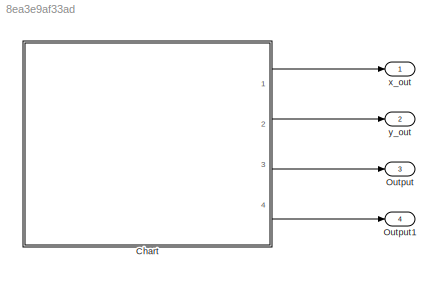
MODEL slx_8ea3e9af33ad
KIND model
CONFIG AbsTol = auto
CONFIG EnableMultiTasking = off
CONFIG FixedStep = timeStepMax
CONFIG MaxStep = timeStepMax
CONFIG MinStep = auto
CONFIG RelTol = 1e-3
CONFIG SampleTimeConstraint = Unconstrained
CONFIG SolverName = FixedStepAuto
CONFIG StartTime = 0.0
CONFIG StopTime = timeFinal
WORKSPACE source: mxarray member
WORKSPACE x0 = 5
WORKSPACE y0 = 5
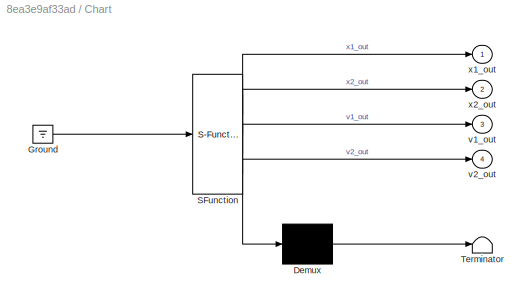
BLOCK [SubSystem] Chart
  ErrorFcn = Stateflow.Translate.translate
  PermitHierarchicalResolution = ExplicitOnly
  Ports = [0, 4]
  RequestExecContextInheritance = off
  SFBlockType = Chart
  TreatAsAtomicUnit = on
BLOCK [Demux] Chart/ Demux 
  Outputs = 1
  Ports = [1, 1]
BLOCK [Ground] Chart/ Ground 
BLOCK [S-Function] Chart/ SFunction 
  EnableBusSupport = on
  FunctionName = sf_sfun
  Parameters = a0,a1,b0,b1
  PortCounts = [1 5]
  Ports = [1, 5]
  SFcnIsStateOwnerBlock = off
  SFunctionDeploymentMode = off
  Tag = Stateflow S-Function 3
BLOCK [Terminator] Chart/ Terminator 
BLOCK [Outport] Chart/v1_out
  Port = 3
BLOCK [Outport] Chart/v2_out
  Port = 4
BLOCK [Outport] Chart/x1_out
BLOCK [Outport] Chart/x2_out
  Port = 2
BLOCK [Outport] Output
  Port = 3
  SignalName = v1Out
BLOCK [Outport] Output1
  Port = 4
  SignalName = v2Out
BLOCK [Outport] x_out
  SignalName = x1Out
BLOCK [Outport] y_out
  Port = 2
  SignalName = x2Out
LINE Chart:1 -> x_out:1
LINE Chart:2 -> y_out:1
LINE Chart:3 -> Output:1
LINE Chart:4 -> Output1:1
CHART Chart states=9 transitions=30
  STATE_LABEL 'loc9\ndu:  % derivatives\n  x1_dot = 1.0 * v1;\n  x2_dot = 1.0 * v2;\n  v1_dot = -1.2 * v1 + 0.1 * v2 + 0.1;\n  v2_dot = 0.1 * v1 - 1.2 * v2 - 1.2;\nexit:\n      x1_out=x1;\n      x2_out=x2;\n      v1_out=v1;\n      v2_out=v2;'
  STATE_LABEL 'loc7\ndu:\n    x1_dot = 0;\n    x2_dot = 0;\n    v1_dot = 0;\n    v2_dot = 0;\nexit:\n      x1_out=x1;\n      x2_out=x2;\n      v1_out=v1;\n      v2_out=v2;'
  STATE_LABEL 'loc8\ndu:  % derivatives\n  x1_dot = 1.0 * v1;\n  x2_dot = 1.0 * v2;\n  v1_dot = -1.2 * v1 + 0.1 * v2 + 1.2;\n  v2_dot = 0.1 * v1 - 1.2 * v2 - 0.1;\nexit:\n      x1_out=x1;\n      x2_out=x2;\n      v1_out=v1;\n      v2_out=v2;'
  STATE_LABEL 'loc4\ndu:  % derivatives\n  x1_dot = 1.0 * v1;\n  x2_dot = 1.0 * v2;\n  v1_dot = -1.2 * v1 + 0.1 * v2 + 1.2;\n  v2_dot = 0.1 * v1 - 1.2 * v2 - 0.1;\nexit:\n      x1_out=x1;\n      x2_out=x2;\n      v1_out=v1;\n      v2_out=v2;'
  STATE_LABEL 'loc5\ndu:  % derivatives\n  x1_dot = 1.0 * v1;\n  x2_dot = 1.0 * v2;\n  v1_dot = -1.2 * v1 + 0.1 * v2 + 1.2;\n  v2_dot = 0.1 * v1 - 1.2 * v2 - 0.1;\nexit:\n      x1_out=x1;\n      x2_out=x2;\n      v1_out=v1;\n      v2_out=v2;'
  STATE_LABEL 'loc6\ndu:  % derivatives\n  x1_dot = 1.0 * v1;\n  x2_dot = 1.0 * v2;\n  v1_dot = -1.2 * v1 + 0.1 * v2 + 0.1;\n  v2_dot = 0.1 * v1 - 1.2 * v2 - 1.2;\nexit:\n      x1_out=x1;\n      x2_out=x2;\n      v1_out=v1;\n      v2_out=v2;'
  STATE_LABEL 'loc3\ndu:\n  x1_dot = 0;\n  x2_dot = 0;\n  v1_dot = 0;\n  v2_dot = 0;\nexit:\n      x1_out=x1;\n      x2_out=x2;\n      v1_out=v1;\n      v2_out=v2;'
  STATE_LABEL 'loc1\ndu:  % derivatives\n  x1_dot = 1.0 * v1;\n  x2_dot = 1.0 * v2;\n  v1_dot = -1.2 * v1 + 0.1 * v2 + 0.777821;\n  v2_dot = 0.1 * v1 - 1.2 * v2 + 0.777821;\nexit:\n      x1_out=x1;\n      x2_out=x2;\n      v1_out=v1;\n      v2_out=v2;'
  STATE_LABEL 'loc2\ndu:\n  x1_dot = 1.0 * v1;\n  x2_dot = 1.0 * v2;\n  v1_dot = -1.2 * v1 + 0.1 * v2 + 0.777821;\n  v2_dot = 0.1 * v1 - 1.2 * v2 + 0.777821;\nexit:\n      x1_out=x1;\n      x2_out=x2;\n      v1_out=v1;\n      v2_out=v2;'
CHART  states=0 transitions=0
